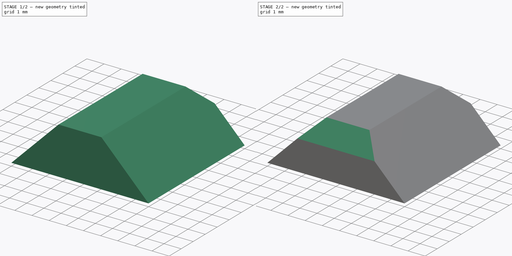
[diagram: build sequence overview — one tinted view per stage of 2, left to right]
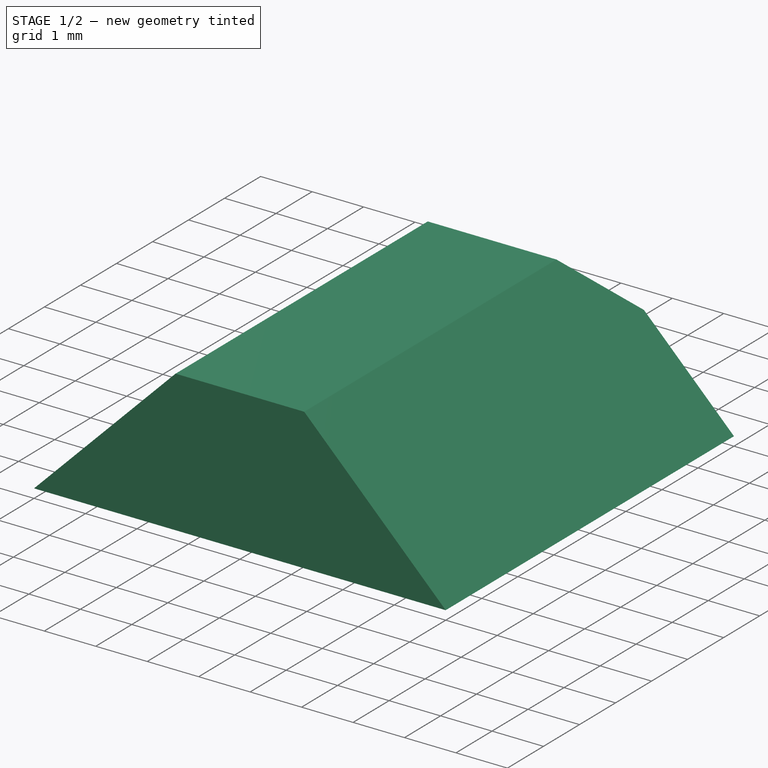
[diagram: stage 1 of 2 — iso view after this stage's code; geometry added in this stage tinted green]
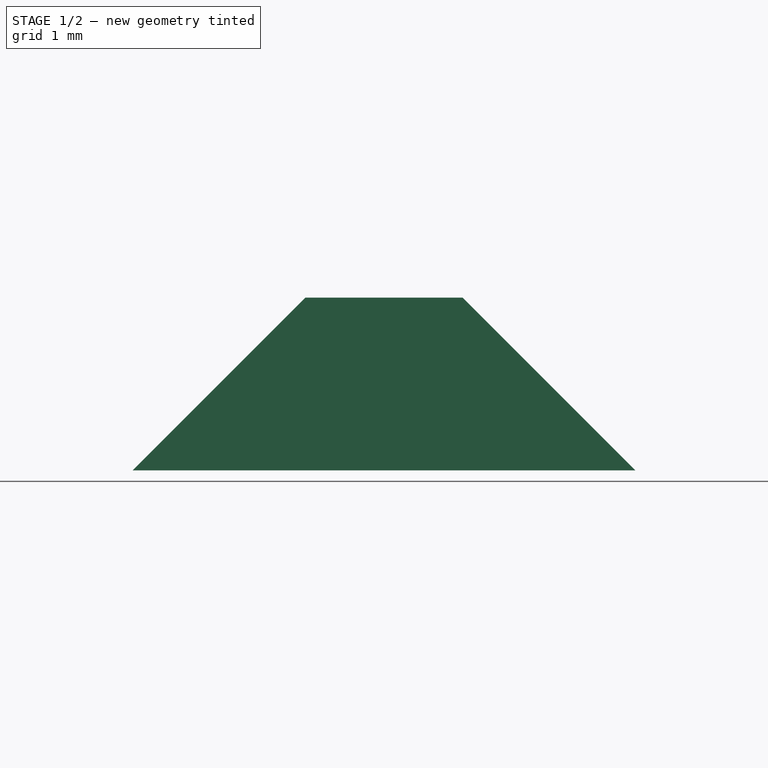
[diagram: stage 1 of 2 — front view after this stage's code; geometry added in this stage tinted green]
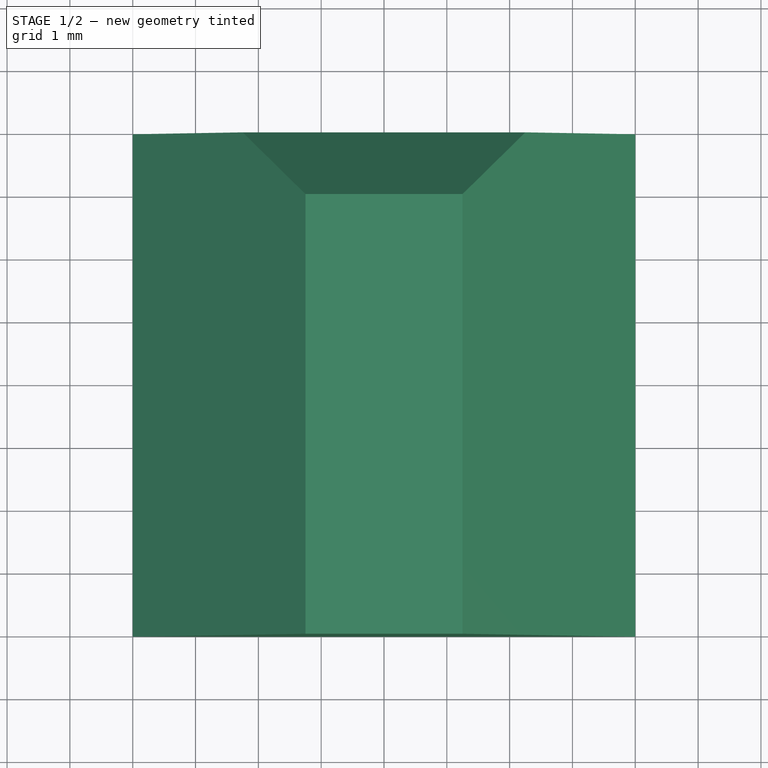
[diagram: stage 1 of 2 — top view after this stage's code; geometry added in this stage tinted green]
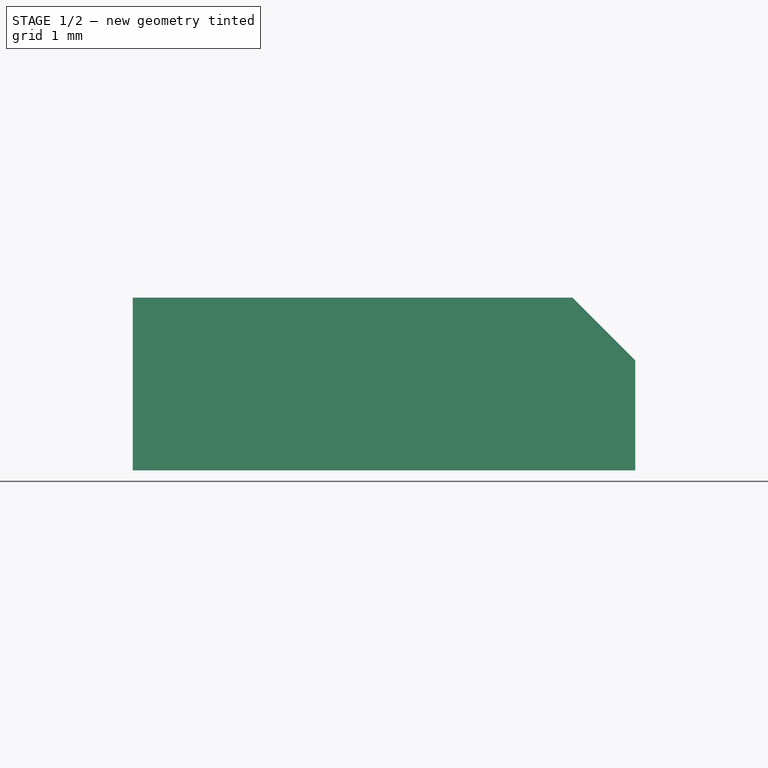
[diagram: stage 1 of 2 — right view after this stage's code; geometry added in this stage tinted green]
FCSTD DOCUMENT  (FreeCAD 0.18R16110 (Git))
Label: leg
License: All rights reserved
LicenseURL: http://en.wikipedia.org/wiki/All_rights_reserved
objects: Part::Chamfer×2, Sketcher::SketchObject×1, Part::Extrusion×1
note: 4 computed .brp shape members not serialized (recipe doc carries the construction recipe); baked Part::Feature solids carry a one-line shape summary decoded from their .brp

FEATURE [Sketcher::SketchObject] Sketch
  Placement = pos=(0,0,0) rot=(-1,0,0;4.71239rad)
  sketch-geometry (5):
    g0: LineSegment StartX=-1.25 StartY=10 StartZ=0 EndX=1.25 EndY=10 EndZ=0
    g1: LineSegment StartX=4 StartY=7.25 StartZ=0 EndX=-4 EndY=7.25 EndZ=0
    g2: LineSegment StartX=-4 StartY=7.25 StartZ=0 EndX=-1.25 EndY=10 EndZ=0
    g3: LineSegment StartX=1.25 StartY=10 StartZ=0 EndX=4 EndY=7.25 EndZ=0
    g4: LineSegment [constr] StartX=1.25 StartY=10 StartZ=0 EndX=1.25 EndY=7.25 EndZ=0
  constraints (14):
    c: Horizontal(g0)
    c: Coincident(g2,g0)
    c: Coincident(g2,g1)
    c: Angle(g1,g2) = 0.785398
    c: Coincident(g3,g0)
    c: Coincident(g3,g1)
    c: Angle(g3,g1) = 0.785398
    c: DistanceX(g1,g1) = 8
    c: DistanceY(g0) = 10
    c: Symmetric(g1,g1,g-2)
    c: Coincident(g4,g0)
    c: PointOnObject(g4,g1)
    c: Vertical(g4)
    c: DistanceY(g4,g4) = 2.75
FEATURE [Part::Extrusion] Extrude
  Base = -> Sketch
  Dir = (0,-1,0)
  DirMode = 2
  FaceMakerClass = Part::FaceMakerBullseye
  LengthFwd = 8
  LengthRev = 0
  Solid = true
  Symmetric = false
FEATURE [Part::Chamfer] Chamfer
  Base = -> Extrude
  Edges = 1 edges r=1: [Edge3]
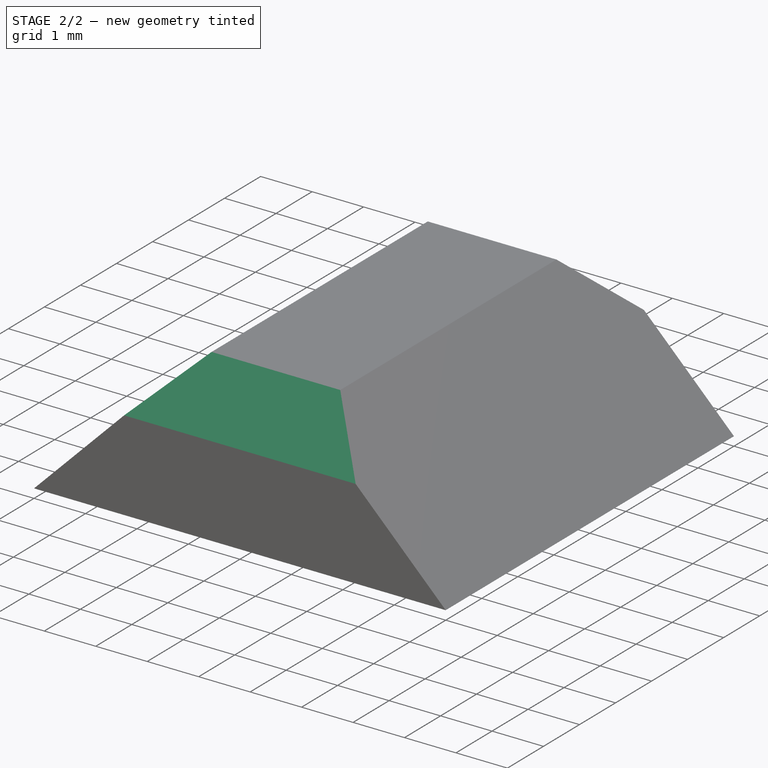
[diagram: stage 2 of 2 — iso view after this stage's code; geometry added in this stage tinted green]
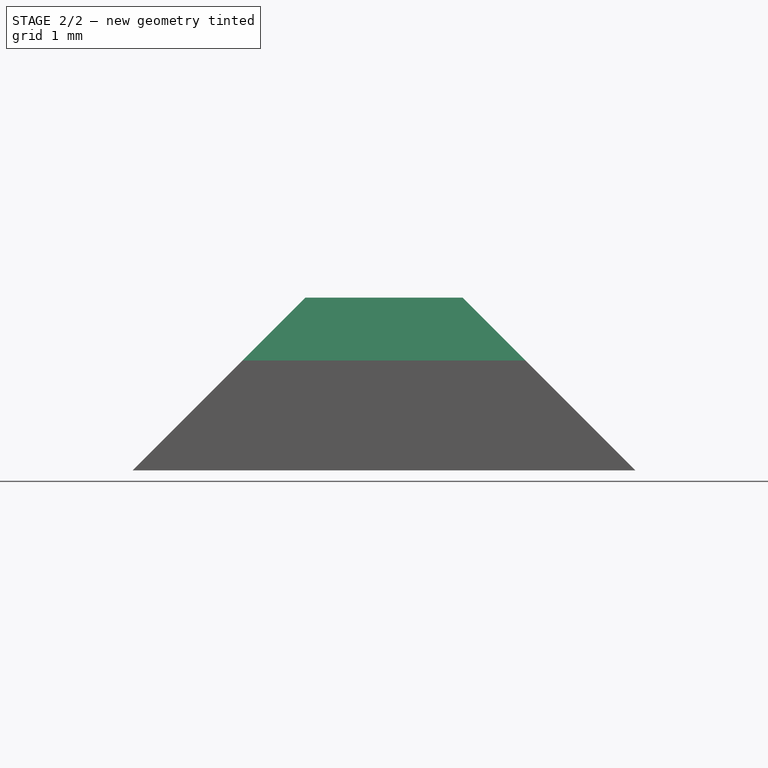
[diagram: stage 2 of 2 — front view after this stage's code; geometry added in this stage tinted green]
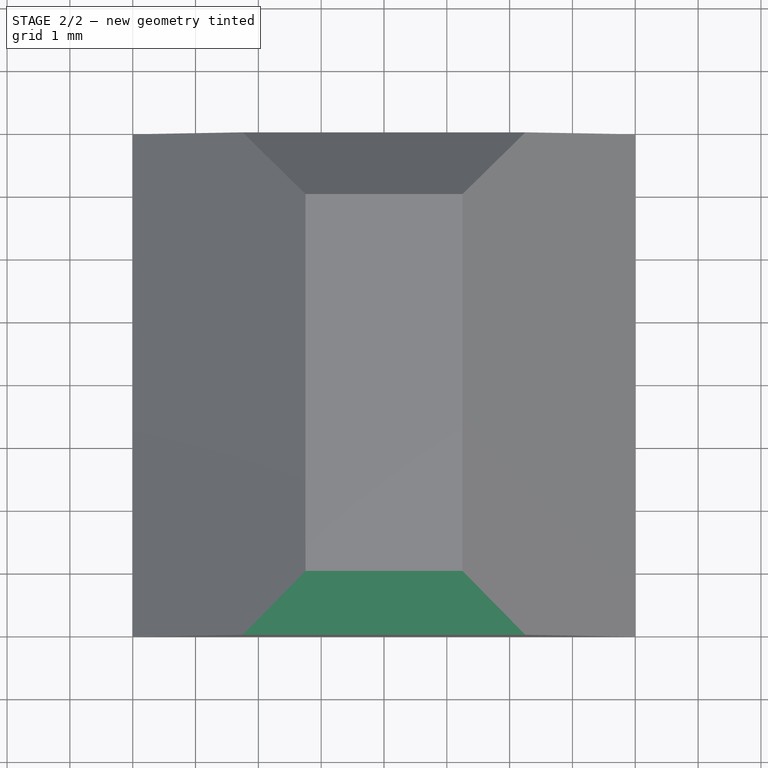
[diagram: stage 2 of 2 — top view after this stage's code; geometry added in this stage tinted green]
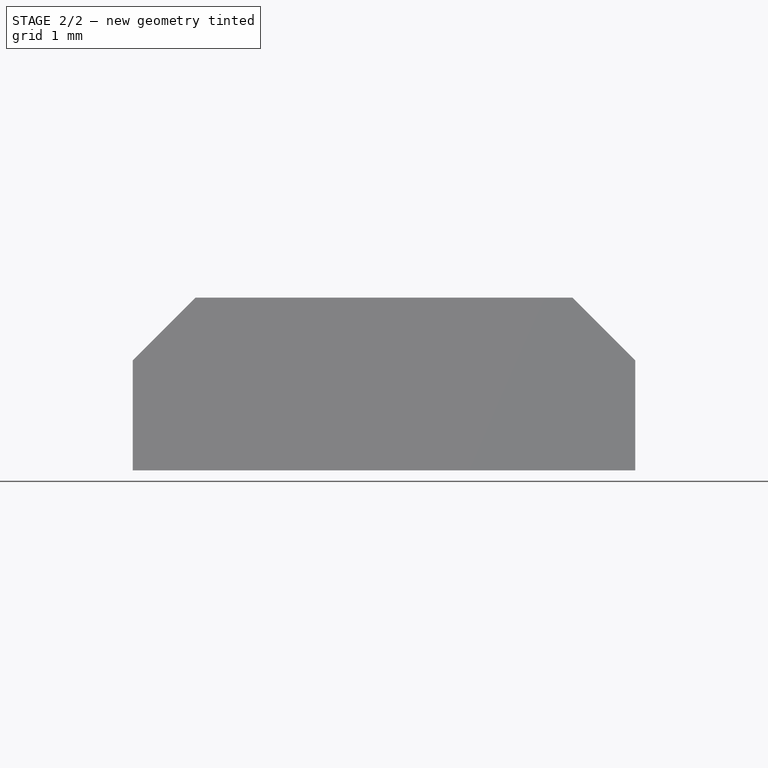
[diagram: stage 2 of 2 — right view after this stage's code; geometry added in this stage tinted green]
FEATURE [Part::Chamfer] Chamfer001
  Base = -> Chamfer
  Edges = 1 edges r=1: [Edge3]
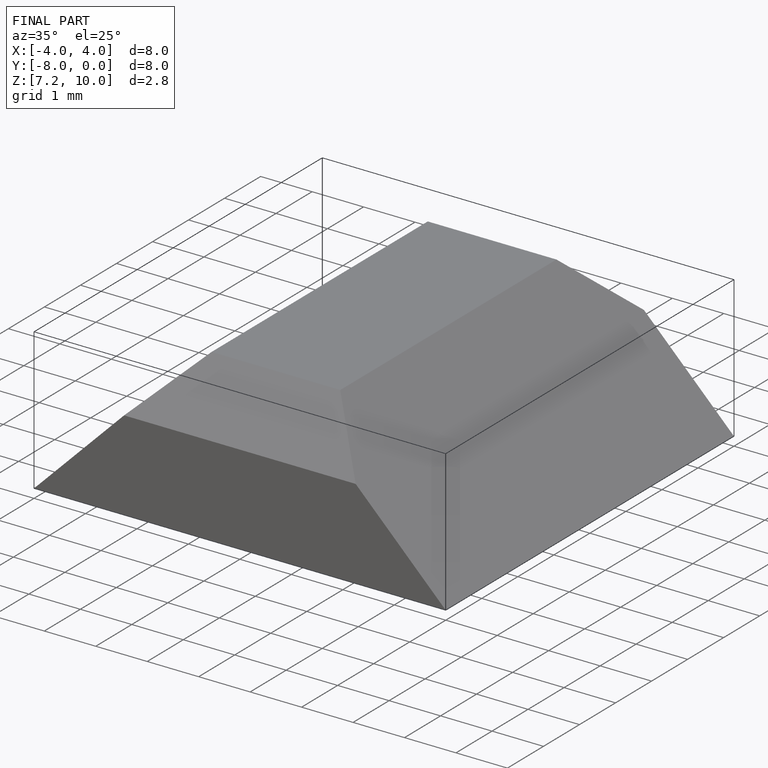
[diagram: finished part — iso view with bounding-box wireframe]
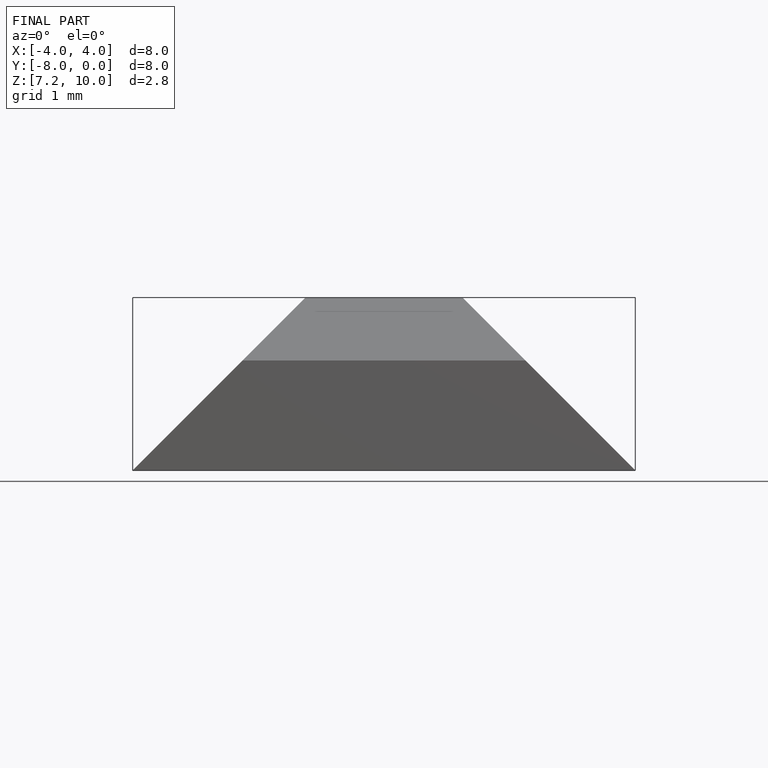
[diagram: finished part — front view with bounding-box wireframe]
